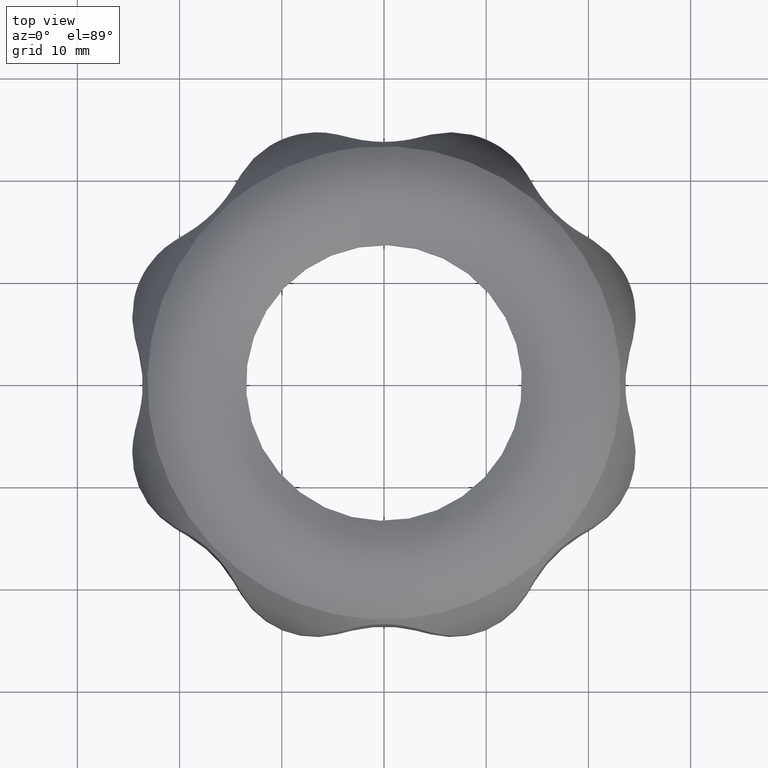
[diagram: clean part render]
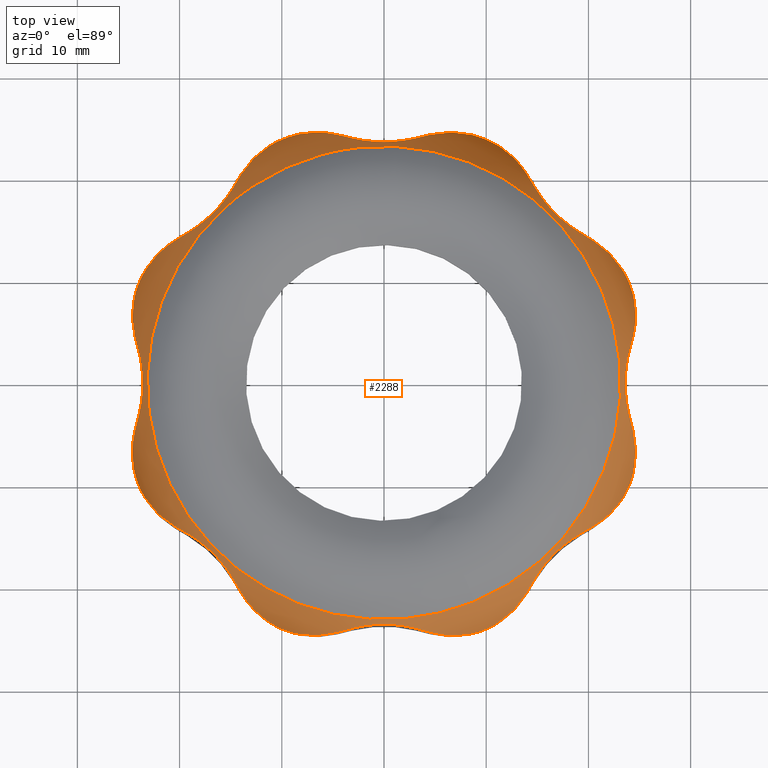
[diagram: same view with one face highlighted and labeled with its STEP entity id]
A machine part, top view. The second image highlights one B-rep face of the part: STEP entity #2288.
In plain terms, the highlighted face is a freeform B-spline surface patch.
Its self-contained STEP definition (entity closure, byte-faithful):
#2288 = ADVANCED_FACE( '', ( #6747, #6748 ), #6749, .T. );
#6747 = FACE_OUTER_BOUND( '', #11383, .T. );
#6748 = FACE_OUTER_BOUND( '', #11384, .T. );
#6749 = ( B_SPLINE_SURFACE( 3, 3, ( ( #11386, #11387, #11388, #11389, #11390, #11391, #11392 ), ( #11393, #11394, #11395, #11396, #11397, #11398, #11399 ), ( #11400, #11401, #11402, #11403, #11404, #11405, #11406 ), ( #11407, #11408, #11409, #11410, #11411, #11412, #11413 ) ), .UNSPECIFIED., .F., .T., .F. )B_SPLINE_SURFACE_WITH_KNOTS( ( 4, 4 ), ( 4, 3, 4 ), ( 0.000000000000000, 6.28318530717959 ), ( 0.108117057146346, 0.327242934554996, 0.546368811963645 ), .UNSPECIFIED. )RATIONAL_B_SPLINE_SURFACE( ( ( 1.00000000000000, 0.333333333333333, 0.333333333333333, 1.00000000000000, 0.333333333333333, 0.333333333333333, 1.00000000000000 ), ( 0.984058557275389, 0.328019519091796, 0.328019519091796, 0.984058557275389, 0.328019519091796, 0.328019519091796, 0.984058557275389 ), ( 0.984058557275389, 0.328019519091796, 0.328019519091796, 0.984058557275389, 0.328019519091796, 0.328019519091796, 0.984058557275389 ), ( 1.00000000000000, 0.333333333333333, 0.333333333333333, 1.00000000000000, 0.333333333333333, 0.333333333333333, 1.00000000000000 ) ) )BOUNDED_SURFACE(  )REPRESENTATION_ITEM( '' )GEOMETRIC_REPRESENTATION_ITEM(  )SURFACE(  ) );
#11383 = EDGE_LOOP( '', ( #31078 ) );
#11384 = EDGE_LOOP( '', ( #31079, #31080, #31081, #31082, #31083, #31084, #31085, #31086, #31087, #31088, #31089, #31090, #31091, #31092, #31093, #31094, #31095, #31096, #31097, #31098, #31099, #31100, #31101, #31102, #31103, #31104, #31105, #31106, #31107, #31108, #31109, #31110 ) );
#11386 = CARTESIAN_POINT( '', ( 8.86366754810526, -21.3987864070020, 14.3618363573818 ) );
#11387 = CARTESIAN_POINT( '', ( 51.6612403621092, -3.67145131079148, 14.3618363573818 ) );
#11388 = CARTESIAN_POINT( '', ( 33.9339052658987, 39.1261215032125, 14.3618363573818 ) );
#11389 = CARTESIAN_POINT( '', ( -8.86366754810526, 21.3987864070020, 14.3618363573818 ) );
#11390 = CARTESIAN_POINT( '', ( -51.6612403621092, 3.67145131079148, 14.3618363573818 ) );
#11391 = CARTESIAN_POINT( '', ( -33.9339052658987, -39.1261215032125, 14.3618363573818 ) );
#11392 = CARTESIAN_POINT( '', ( 8.86366754810526, -21.3987864070020, 14.3618363573818 ) );
#11393 = CARTESIAN_POINT( '', ( 9.44930551627223, -22.8126415323913, 11.8453175872549 ) );
#11394 = CARTESIAN_POINT( '', ( 55.0745885810549, -3.91403049984686, 11.8453175872549 ) );
#11395 = CARTESIAN_POINT( '', ( 36.1759775485104, 41.7112525649358, 11.8453175872549 ) );
#11396 = CARTESIAN_POINT( '', ( -9.44930551627223, 22.8126415323913, 11.8453175872549 ) );
#11397 = CARTESIAN_POINT( '', ( -55.0745885810549, 3.91403049984686, 11.8453175872549 ) );
#11398 = CARTESIAN_POINT( '', ( -36.1759775485104, -41.7112525649358, 11.8453175872549 ) );
#11399 = CARTESIAN_POINT( '', ( 9.44930551627223, -22.8126415323913, 11.8453175872549 ) );
#11400 = CARTESIAN_POINT( '', ( 9.81159952730305, -23.6872966473885, 9.05631304349200 ) );
#11401 = CARTESIAN_POINT( '', ( 57.1861928220800, -4.06409759278237, 9.05631304349200 ) );
#11402 = CARTESIAN_POINT( '', ( 37.5629937674739, 43.3104957019946, 9.05631304349201 ) );
#11403 = CARTESIAN_POINT( '', ( -9.81159952730305, 23.6872966473885, 9.05631304349201 ) );
#11404 = CARTESIAN_POINT( '', ( -57.1861928220800, 4.06409759278237, 9.05631304349201 ) );
#11405 = CARTESIAN_POINT( '', ( -37.5629937674739, -43.3104957019946, 9.05631304349200 ) );
#11406 = CARTESIAN_POINT( '', ( 9.81159952730305, -23.6872966473885, 9.05631304349200 ) );
#11407 = CARTESIAN_POINT( '', ( 9.93322311351877, -23.9809219587349, 6.12820499467240 ) );
#11408 = CARTESIAN_POINT( '', ( 57.8950670309886, -4.11447573169738, 6.12820499467240 ) );
#11409 = CARTESIAN_POINT( '', ( 38.0286208039511, 43.8473681857725, 6.12820499467240 ) );
#11410 = CARTESIAN_POINT( '', ( -9.93322311351877, 23.9809219587349, 6.12820499467241 ) );
#11411 = CARTESIAN_POINT( '', ( -57.8950670309886, 4.11447573169738, 6.12820499467240 ) );
#11412 = CARTESIAN_POINT( '', ( -38.0286208039511, -43.8473681857725, 6.12820499467240 ) );
#11413 = CARTESIAN_POINT( '', ( 9.93322311351877, -23.9809219587349, 6.12820499467240 ) );
#31078 = ORIENTED_EDGE( '', *, *, #37648, .F. );
#31079 = ORIENTED_EDGE( '', *, *, #37646, .F. );
#31080 = ORIENTED_EDGE( '', *, *, #37645, .F. );
#31081 = ORIENTED_EDGE( '', *, *, #37643, .F. );
#31082 = ORIENTED_EDGE( '', *, *, #37641, .F. );
#31083 = ORIENTED_EDGE( '', *, *, #37639, .F. );
#31084 = ORIENTED_EDGE( '', *, *, #37637, .F. );
#31085 = ORIENTED_EDGE( '', *, *, #37635, .F. );
#31086 = ORIENTED_EDGE( '', *, *, #37633, .F. );
#31087 = ORIENTED_EDGE( '', *, *, #37631, .F. );
#31088 = ORIENTED_EDGE( '', *, *, #37629, .F. );
#31089 = ORIENTED_EDGE( '', *, *, #37627, .F. );
#31090 = ORIENTED_EDGE( '', *, *, #37625, .F. );
#31091 = ORIENTED_EDGE( '', *, *, #37623, .F. );
#31092 = ORIENTED_EDGE( '', *, *, #37621, .F. );
#31093 = ORIENTED_EDGE( '', *, *, #37619, .F. );
#31094 = ORIENTED_EDGE( '', *, *, #37617, .F. );
#31095 = ORIENTED_EDGE( '', *, *, #37615, .F. );
#31096 = ORIENTED_EDGE( '', *, *, #37613, .F. );
#31097 = ORIENTED_EDGE( '', *, *, #37611, .F. );
#31098 = ORIENTED_EDGE( '', *, *, #37609, .F. );
#31099 = ORIENTED_EDGE( '', *, *, #37607, .F. );
#31100 = ORIENTED_EDGE( '', *, *, #37605, .F. );
#31101 = ORIENTED_EDGE( '', *, *, #37603, .F. );
#31102 = ORIENTED_EDGE( '', *, *, #37601, .F. );
#31103 = ORIENTED_EDGE( '', *, *, #37599, .F. );
#31104 = ORIENTED_EDGE( '', *, *, #37597, .F. );
#31105 = ORIENTED_EDGE( '', *, *, #37595, .F. );
#31106 = ORIENTED_EDGE( '', *, *, #37593, .F. );
#31107 = ORIENTED_EDGE( '', *, *, #37591, .F. );
#31108 = ORIENTED_EDGE( '', *, *, #37589, .F. );
#31109 = ORIENTED_EDGE( '', *, *, #37587, .F. );
#31110 = ORIENTED_EDGE( '', *, *, #37585, .F. );
#37585 = EDGE_CURVE( '', #48445, #48443, #48447, .T. );
#37587 = EDGE_CURVE( '', #48443, #48448, #48450, .T. );
#37589 = EDGE_CURVE( '', #48448, #48451, #48453, .T. );
#37591 = EDGE_CURVE( '', #48451, #48454, #48456, .T. );
#37593 = EDGE_CURVE( '', #48454, #48457, #48459, .T. );
#37595 = EDGE_CURVE( '', #48457, #48460, #48462, .T. );
#37597 = EDGE_CURVE( '', #48460, #48463, #48465, .T. );
#37599 = EDGE_CURVE( '', #48463, #48466, #48468, .T. );
#37601 = EDGE_CURVE( '', #48466, #48469, #48471, .T. );
#37603 = EDGE_CURVE( '', #48469, #48472, #48474, .T. );
#37605 = EDGE_CURVE( '', #48472, #48475, #48477, .T. );
#37607 = EDGE_CURVE( '', #48475, #48478, #48480, .T. );
#37609 = EDGE_CURVE( '', #48478, #48481, #48483, .T. );
#37611 = EDGE_CURVE( '', #48481, #48484, #48486, .T. );
#37613 = EDGE_CURVE( '', #48484, #48487, #48489, .T. );
#37615 = EDGE_CURVE( '', #48487, #48490, #48492, .T. );
#37617 = EDGE_CURVE( '', #48490, #48493, #48495, .T. );
#37619 = EDGE_CURVE( '', #48493, #48496, #48498, .T. );
#37621 = EDGE_CURVE( '', #48496, #48499, #48501, .T. );
#37623 = EDGE_CURVE( '', #48499, #48502, #48504, .T. );
#37625 = EDGE_CURVE( '', #48502, #48505, #48507, .T. );
#37627 = EDGE_CURVE( '', #48505, #48508, #48510, .T. );
#37629 = EDGE_CURVE( '', #48508, #48511, #48513, .T. );
#37631 = EDGE_CURVE( '', #48511, #48514, #48516, .T. );
#37633 = EDGE_CURVE( '', #48514, #48517, #48519, .T. );
#37635 = EDGE_CURVE( '', #48517, #48520, #48522, .T. );
#37637 = EDGE_CURVE( '', #48520, #48523, #48525, .T. );
#37639 = EDGE_CURVE( '', #48523, #48526, #48528, .T. );
#37641 = EDGE_CURVE( '', #48526, #48529, #48531, .T. );
#37643 = EDGE_CURVE( '', #48529, #48532, #48534, .T. );
#37645 = EDGE_CURVE( '', #48532, #48535, #48537, .T. );
#37646 = EDGE_CURVE( '', #48535, #48445, #48538, .T. );
#37648 = EDGE_CURVE( '', #48541, #48541, #48542, .T. );
#48443 = VERTEX_POINT( '', #75630 );
#48445 = VERTEX_POINT( '', #75633 );
#48447 = B_SPLINE_CURVE_WITH_KNOTS( '', 3, ( #75636, #75637, #75638, #75639, #75640, #75641, #75642, #75643, #75644, #75645, #75646, #75647, #75648, #75649, #75650, #75651, #75652, #75653, #75654, #75655, #75656, #75657, #75658, #75659, #75660, #75661, #75662, #75663, #75664, #75665, #75666, #75667 ), .UNSPECIFIED., .F., .F., ( 4, 2, 2, 2, 2, 2, 2, 2, 2, 2, 2, 2, 2, 2, 2, 4 ), ( 3.00726133243734E-007, 0.00184662271264011, 0.00369294469914697, 0.00461610569240040, 0.00553926668565384, 0.00646242767890727, 0.00692400817553399, 0.00738558867216070, 0.00784716916878742, 0.00830874966541414, 0.00877033016204085, 0.00923191065866757, 0.0101550716519210, 0.0110782326451744, 0.0129245546316813, 0.0147708766181882 ), .UNSPECIFIED. );
#48448 = VERTEX_POINT( '', #75668 );
#48450 = B_SPLINE_CURVE_WITH_KNOTS( '', 3, ( #75671, #75672, #75673, #75674 ), .UNSPECIFIED., .F., .F., ( 4, 4 ), ( 3.01908104189329E-007, 0.00208629614427820 ), .UNSPECIFIED. );
#48451 = VERTEX_POINT( '', #75675 );
#48453 = B_SPLINE_CURVE_WITH_KNOTS( '', 3, ( #75678, #75679, #75680, #75681, #75682, #75683, #75684, #75685, #75686, #75687, #75688, #75689, #75690, #75691, #75692, #75693, #75694, #75695 ), .UNSPECIFIED., .F., .F., ( 4, 2, 2, 2, 2, 2, 2, 2, 4 ), ( 2.54486947955710E-007, 0.000851564008463914, 0.00170287352997987, 0.00255418305149583, 0.00340549257301179, 0.00425680209452775, 0.00510811161604371, 0.00595942113755967, 0.00681073065907562 ), .UNSPECIFIED. );
#48454 = VERTEX_POINT( '', #75696 );
#48456 = B_SPLINE_CURVE_WITH_KNOTS( '', 3, ( #75699, #75700, #75701, #75702 ), .UNSPECIFIED., .F., .F., ( 4, 4 ), ( 3.16318687640545E-007, 0.00208630547498395 ), .UNSPECIFIED. );
#48457 = VERTEX_POINT( '', #75703 );
#48459 = B_SPLINE_CURVE_WITH_KNOTS( '', 3, ( #75706, #75707, #75708, #75709, #75710, #75711, #75712, #75713, #75714, #75715, #75716, #75717, #75718, #75719, #75720, #75721, #75722, #75723, #75724, #75725, #75726, #75727, #75728, #75729, #75730, #75731, #75732, #75733, #75734, #75735, #75736, #75737 ), .UNSPECIFIED., .F., .F., ( 4, 2, 2, 2, 2, 2, 2, 2, 2, 2, 2, 2, 2, 2, 2, 4 ), ( 3.71176971205966E-007, 0.00184669291424960, 0.00369301465152799, 0.00461617552016718, 0.00553933638880637, 0.00646249725744556, 0.00692407769176515, 0.00738565812608475, 0.00784723856040434, 0.00830881899472393, 0.00877039942904353, 0.00923197986336312, 0.0101551407320023, 0.0110783016006415, 0.0129246233379199, 0.0147709450751982 ), .UNSPECIFIED. );
#48460 = VERTEX_POINT( '', #75738 );
#48462 = B_SPLINE_CURVE_WITH_KNOTS( '', 3, ( #75741, #75742, #75743, #75744 ), .UNSPECIFIED., .F., .F., ( 4, 4 ), ( 3.72632336376977E-007, 0.00208636271298664 ), .UNSPECIFIED. );
#48463 = VERTEX_POINT( '', #75745 );
#48465 = B_SPLINE_CURVE_WITH_KNOTS( '', 3, ( #75748, #75749, #75750, #75751, #75752, #75753, #75754, #75755, #75756, #75757, #75758, #75759, #75760, #75761, #75762, #75763, #75764, #75765 ), .UNSPECIFIED., .F., .F., ( 4, 2, 2, 2, 2, 2, 2, 2, 4 ), ( 3.14105581883907E-007, 0.000851624285171534, 0.00170293446476118, 0.00255424464435084, 0.00340555482394049, 0.00425686500353014, 0.00510817518311979, 0.00595948536270944, 0.00681079554229909 ), .UNSPECIFIED. );
#48466 = VERTEX_POINT( '', #75766 );
#48468 = B_SPLINE_CURVE_WITH_KNOTS( '', 3, ( #75769, #75770, #75771, #75772 ), .UNSPECIFIED., .F., .F., ( 4, 4 ), ( 2.56284012605812E-007, 0.00208624151364986 ), .UNSPECIFIED. );
#48469 = VERTEX_POINT( '', #75773 );
#48471 = B_SPLINE_CURVE_WITH_KNOTS( '', 3, ( #75776, #75777, #75778, #75779, #75780, #75781, #75782, #75783, #75784, #75785, #75786, #75787, #75788, #75789, #75790, #75791, #75792, #75793, #75794, #75795, #75796, #75797, #75798, #75799, #75800, #75801, #75802, #75803, #75804, #75805, #75806, #75807 ), .UNSPECIFIED., .F., .F., ( 4, 2, 2, 2, 2, 2, 2, 2, 2, 2, 2, 2, 2, 2, 2, 4 ), ( 3.00726128225049E-007, 0.00184662271263575, 0.00369294469914327, 0.00461610569239703, 0.00553926668565079, 0.00646242767890455, 0.00692400817553143, 0.00738558867215831, 0.00784716916878518, 0.00830874966541206, 0.00877033016203894, 0.00923191065866582, 0.0101550716519196, 0.0110782326451733, 0.0129245546316809, 0.0147708766181884 ), .UNSPECIFIED. );
#48472 = VERTEX_POINT( '', #75808 );
#48474 = B_SPLINE_CURVE_WITH_KNOTS( '', 3, ( #75811, #75812, #75813, #75814 ), .UNSPECIFIED., .F., .F., ( 4, 4 ), ( 3.01908104187495E-007, 0.00208629614427849 ), .UNSPECIFIED. );
#48475 = VERTEX_POINT( '', #75815 );
#48477 = B_SPLINE_CURVE_WITH_KNOTS( '', 3, ( #75818, #75819, #75820, #75821, #75822, #75823, #75824, #75825, #75826, #75827, #75828, #75829, #75830, #75831, #75832, #75833, #75834, #75835 ), .UNSPECIFIED., .F., .F., ( 4, 2, 2, 2, 2, 2, 2, 2, 4 ), ( 2.54486948203168E-007, 0.000851564008464146, 0.00170287352998009, 0.00255418305149603, 0.00340549257301197, 0.00425680209452792, 0.00510811161604386, 0.00595942113755980, 0.00681073065907575 ), .UNSPECIFIED. );
#48478 = VERTEX_POINT( '', #75836 );
#48480 = B_SPLINE_CURVE_WITH_KNOTS( '', 3, ( #75839, #75840, #75841, #75842 ), .UNSPECIFIED., .F., .F., ( 4, 4 ), ( 3.16318687597150E-007, 0.00208630547498352 ), .UNSPECIFIED. );
#48481 = VERTEX_POINT( '', #75843 );
#48483 = B_SPLINE_CURVE_WITH_KNOTS( '', 3, ( #75846, #75847, #75848, #75849, #75850, #75851, #75852, #75853, #75854, #75855, #75856, #75857, #75858, #75859, #75860, #75861, #75862, #75863, #75864, #75865, #75866, #75867, #75868, #75869, #75870, #75871, #75872, #75873, #75874, #75875, #75876, #75877 ), .UNSPECIFIED., .F., .F., ( 4, 2, 2, 2, 2, 2, 2, 2, 2, 2, 2, 2, 2, 2, 2, 4 ), ( 3.71176971171015E-007, 0.00184669291425181, 0.00369301465153245, 0.00461617552017277, 0.00553933638881309, 0.00646249725745341, 0.00692407769177357, 0.00738565812609373, 0.00784723856041390, 0.00830881899473406, 0.00877039942905422, 0.00923197986337438, 0.0101551407320147, 0.0110783016006550, 0.0129246233379357, 0.0147709450752163 ), .UNSPECIFIED. );
#48484 = VERTEX_POINT( '', #75878 );
#48486 = B_SPLINE_CURVE_WITH_KNOTS( '', 3, ( #75881, #75882, #75883, #75884 ), .UNSPECIFIED., .F., .F., ( 4, 4 ), ( 3.72632355295676E-007, 0.00208636271297123 ), .UNSPECIFIED. );
#48487 = VERTEX_POINT( '', #75885 );
#48489 = B_SPLINE_CURVE_WITH_KNOTS( '', 3, ( #75888, #75889, #75890, #75891, #75892, #75893, #75894, #75895, #75896, #75897, #75898, #75899, #75900, #75901, #75902, #75903, #75904, #75905 ), .UNSPECIFIED., .F., .F., ( 4, 2, 2, 2, 2, 2, 2, 2, 4 ), ( 3.14105566133752E-007, 0.000851624285157694, 0.00170293446474925, 0.00255424464434081, 0.00340555482393237, 0.00425686500352393, 0.00510817518311549, 0.00595948536270705, 0.00681079554229861 ), .UNSPECIFIED. );
#48490 = VERTEX_POINT( '', #75906 );
#48492 = B_SPLINE_CURVE_WITH_KNOTS( '', 3, ( #75909, #75910, #75911, #75912 ), .UNSPECIFIED., .F., .F., ( 4, 4 ), ( 2.56284012559903E-007, 0.00208624151365016 ), .UNSPECIFIED. );
#48493 = VERTEX_POINT( '', #75913 );
#48495 = B_SPLINE_CURVE_WITH_KNOTS( '', 3, ( #75916, #75917, #75918, #75919, #75920, #75921, #75922, #75923, #75924, #75925, #75926, #75927, #75928, #75929, #75930, #75931, #75932, #75933, #75934, #75935, #75936, #75937, #75938, #75939, #75940, #75941, #75942, #75943, #75944, #75945, #75946, #75947 ), .UNSPECIFIED., .F., .F., ( 4, 2, 2, 2, 2, 2, 2, 2, 2, 2, 2, 2, 2, 2, 2, 4 ), ( 3.00726128264484E-007, 0.00184662271263836, 0.00369294469914845, 0.00461610569240350, 0.00553926668565855, 0.00646242767891359, 0.00692400817554112, 0.00738558867216864, 0.00784716916879616, 0.00830874966542369, 0.00877033016205121, 0.00923191065867873, 0.0101550716519338, 0.0110782326451888, 0.0129245546316989, 0.0147708766182090 ), .UNSPECIFIED. );
#48496 = VERTEX_POINT( '', #75948 );
#48498 = B_SPLINE_CURVE_WITH_KNOTS( '', 3, ( #75951, #75952, #75953, #75954 ), .UNSPECIFIED., .F., .F., ( 4, 4 ), ( 3.01908125103824E-007, 0.00208629614427978 ), .UNSPECIFIED. );
#48499 = VERTEX_POINT( '', #75955 );
#48501 = B_SPLINE_CURVE_WITH_KNOTS( '', 3, ( #75958, #75959, #75960, #75961, #75962, #75963, #75964, #75965, #75966, #75967, #75968, #75969, #75970, #75971, #75972, #75973, #75974, #75975 ), .UNSPECIFIED., .F., .F., ( 4, 2, 2, 2, 2, 2, 2, 2, 4 ), ( 2.54486948081974E-007, 0.000851564008463954, 0.00170287352997983, 0.00255418305149570, 0.00340549257301157, 0.00425680209452744, 0.00510811161604331, 0.00595942113755918, 0.00681073065907505 ), .UNSPECIFIED. );
#48502 = VERTEX_POINT( '', #75976 );
#48504 = B_SPLINE_CURVE_WITH_KNOTS( '', 3, ( #75979, #75980, #75981, #75982 ), .UNSPECIFIED., .F., .F., ( 4, 4 ), ( 3.16318687722787E-007, 0.00208630547498366 ), .UNSPECIFIED. );
#48505 = VERTEX_POINT( '', #75983 );
#48507 = B_SPLINE_CURVE_WITH_KNOTS( '', 3, ( #75986, #75987, #75988, #75989, #75990, #75991, #75992, #75993, #75994, #75995, #75996, #75997, #75998, #75999, #76000, #76001, #76002, #76003, #76004, #76005, #76006, #76007, #76008, #76009, #76010, #76011, #76012, #76013, #76014, #76015, #76016, #76017 ), .UNSPECIFIED., .F., .F., ( 4, 2, 2, 2, 2, 2, 2, 2, 2, 2, 2, 2, 2, 2, 2, 4 ), ( 3.71176971246008E-007, 0.00184669291425170, 0.00369301465153216, 0.00461617552017238, 0.00553933638881261, 0.00646249725745284, 0.00692407769177296, 0.00738565812609307, 0.00784723856041319, 0.00830881899473330, 0.00877039942905342, 0.00923197986337353, 0.0101551407320138, 0.0110783016006540, 0.0129246233379345, 0.0147709450752150 ), .UNSPECIFIED. );
#48508 = VERTEX_POINT( '', #76018 );
#48510 = B_SPLINE_CURVE_WITH_KNOTS( '', 3, ( #76021, #76022, #76023, #76024 ), .UNSPECIFIED., .F., .F., ( 4, 4 ), ( 3.72632353421950E-007, 0.00208636271298631 ), .UNSPECIFIED. );
#48511 = VERTEX_POINT( '', #76025 );
#48513 = B_SPLINE_CURVE_WITH_KNOTS( '', 3, ( #76028, #76029, #76030, #76031, #76032, #76033, #76034, #76035, #76036, #76037, #76038, #76039, #76040, #76041, #76042, #76043, #76044, #76045 ), .UNSPECIFIED., .F., .F., ( 4, 2, 2, 2, 2, 2, 2, 2, 4 ), ( 3.14105581789485E-007, 0.000851624285171441, 0.00170293446476109, 0.00255424464435074, 0.00340555482394040, 0.00425686500353005, 0.00510817518311970, 0.00595948536270935, 0.00681079554229900 ), .UNSPECIFIED. );
#48514 = VERTEX_POINT( '', #76046 );
#48516 = B_SPLINE_CURVE_WITH_KNOTS( '', 3, ( #76049, #76050, #76051, #76052 ), .UNSPECIFIED., .F., .F., ( 4, 4 ), ( 2.56284012576231E-007, 0.00208624151365012 ), .UNSPECIFIED. );
#48517 = VERTEX_POINT( '', #76053 );
#48519 = B_SPLINE_CURVE_WITH_KNOTS( '', 3, ( #76056, #76057, #76058, #76059, #76060, #76061, #76062, #76063, #76064, #76065, #76066, #76067, #76068, #76069, #76070, #76071, #76072, #76073, #76074, #76075, #76076, #76077, #76078, #76079, #76080, #76081, #76082, #76083, #76084, #76085, #76086, #76087 ), .UNSPECIFIED., .F., .F., ( 4, 2, 2, 2, 2, 2, 2, 2, 2, 2, 2, 2, 2, 2, 2, 4 ), ( 3.00726128236855E-007, 0.00184662271263882, 0.00369294469914941, 0.00461610569240471, 0.00553926668566000, 0.00646242767891529, 0.00692400817554294, 0.00738558867217059, 0.00784716916879824, 0.00830874966542588, 0.00877033016205353, 0.00923191065868118, 0.0101550716519365, 0.0110782326451918, 0.0129245546317023, 0.0147708766182129 ), .UNSPECIFIED. );
#48520 = VERTEX_POINT( '', #76088 );
#48522 = B_SPLINE_CURVE_WITH_KNOTS( '', 3, ( #76091, #76092, #76093, #76094 ), .UNSPECIFIED., .F., .F., ( 4, 4 ), ( 3.01908126768529E-007, 0.00208629614427789 ), .UNSPECIFIED. );
#48523 = VERTEX_POINT( '', #76095 );
#48525 = B_SPLINE_CURVE_WITH_KNOTS( '', 3, ( #76098, #76099, #76100, #76101, #76102, #76103, #76104, #76105, #76106, #76107, #76108, #76109, #76110, #76111, #76112, #76113, #76114, #76115 ), .UNSPECIFIED., .F., .F., ( 4, 2, 2, 2, 2, 2, 2, 2, 4 ), ( 2.54486947704893E-007, 0.000851564008463714, 0.00170287352997972, 0.00255418305149573, 0.00340549257301174, 0.00425680209452775, 0.00510811161604376, 0.00595942113755977, 0.00681073065907578 ), .UNSPECIFIED. );
#48526 = VERTEX_POINT( '', #76116 );
#48528 = B_SPLINE_CURVE_WITH_KNOTS( '', 3, ( #76119, #76120, #76121, #76122 ), .UNSPECIFIED., .F., .F., ( 4, 4 ), ( 3.16318687607540E-007, 0.00208630547498373 ), .UNSPECIFIED. );
#48529 = VERTEX_POINT( '', #76123 );
#48531 = B_SPLINE_CURVE_WITH_KNOTS( '', 3, ( #76126, #76127, #76128, #76129, #76130, #76131, #76132, #76133, #76134, #76135, #76136, #76137, #76138, #76139, #76140, #76141, #76142, #76143, #76144, #76145, #76146, #76147, #76148, #76149, #76150, #76151, #76152, #76153, #76154, #76155, #76156, #76157 ), .UNSPECIFIED., .F., .F., ( 4, 2, 2, 2, 2, 2, 2, 2, 2, 2, 2, 2, 2, 2, 2, 4 ), ( 3.71176971144488E-007, 0.00184669291424948, 0.00369301465152781, 0.00461617552016697, 0.00553933638880614, 0.00646249725744530, 0.00692407769176489, 0.00738565812608447, 0.00784723856040405, 0.00830881899472364, 0.00877039942904322, 0.00923197986336280, 0.0101551407320020, 0.0110783016006411, 0.0129246233379195, 0.0147709450751978 ), .UNSPECIFIED. );
#48532 = VERTEX_POINT( '', #76158 );
#48534 = B_SPLINE_CURVE_WITH_KNOTS( '', 3, ( #76161, #76162, #76163, #76164 ), .UNSPECIFIED., .F., .F., ( 4, 4 ), ( 3.72632336389665E-007, 0.00208636271297078 ), .UNSPECIFIED. );
#48535 = VERTEX_POINT( '', #76165 );
#48537 = B_SPLINE_CURVE_WITH_KNOTS( '', 3, ( #76168, #76169, #76170, #76171, #76172, #76173, #76174, #76175, #76176, #76177, #76178, #76179, #76180, #76181, #76182, #76183, #76184, #76185 ), .UNSPECIFIED., .F., .F., ( 4, 2, 2, 2, 2, 2, 2, 2, 4 ), ( 3.14105565979364E-007, 0.000851624285157519, 0.00170293446474906, 0.00255424464434060, 0.00340555482393214, 0.00425686500352367, 0.00510817518311521, 0.00595948536270675, 0.00681079554229829 ), .UNSPECIFIED. );
#48538 = B_SPLINE_CURVE_WITH_KNOTS( '', 3, ( #76186, #76187, #76188, #76189 ), .UNSPECIFIED., .F., .F., ( 4, 4 ), ( 2.56284012583164E-007, 0.00208624151365566 ), .UNSPECIFIED. );
#48541 = VERTEX_POINT( '', #76192 );
#48542 = CIRCLE( '', #76193, 23.1618795026619 );
#75630 = CARTESIAN_POINT( '', ( 20.4734949669686, -13.9793231238272, 11.0172697187238 ) );
#75633 = CARTESIAN_POINT( '', ( 24.3618207041693, -4.59207058274056, 11.0172724455441 ) );
#75636 = CARTESIAN_POINT( '', ( 24.3618207041698, -4.59207058274043, 11.0172724455440 ) );
#75637 = CARTESIAN_POINT( '', ( 24.4633183712004, -4.99305397791593, 10.5550865058585 ) );
#75638 = CARTESIAN_POINT( '', ( 24.5348716391772, -5.39795095029597, 10.0947528049851 ) );
#75639 = CARTESIAN_POINT( '', ( 24.6191918745173, -6.21720850214283, 9.17934841280376 ) );
#75640 = CARTESIAN_POINT( '', ( 24.6321670856578, -6.63110947653761, 8.72386980435630 ) );
#75641 = CARTESIAN_POINT( '', ( 24.6038865382062, -7.26735300931948, 8.05196672951540 ) );
#75642 = CARTESIAN_POINT( '', ( 24.5864650756971, -7.48205906915724, 7.82993708652823 ) );
#75643 = CARTESIAN_POINT( '', ( 24.5330817457076, -7.92189025961248, 7.39432982773094 ) );
#75644 = CARTESIAN_POINT( '', ( 24.4974282373604, -8.14528552208268, 7.18188268382581 ) );
#75645 = CARTESIAN_POINT( '', ( 24.4025234610776, -8.61024005325801, 6.78186396659788 ) );
#75646 = CARTESIAN_POINT( '', ( 24.3435264668733, -8.85150489455924, 6.59268178099820 ) );
#75647 = CARTESIAN_POINT( '', ( 24.2272386626196, -9.24074309825057, 6.36836799208149 ) );
#75648 = CARTESIAN_POINT( '', ( 24.1829822538892, -9.37739938521423, 6.30317003180104 ) );
#75649 = CARTESIAN_POINT( '', ( 24.0838806545056, -9.65702851625350, 6.21291362903878 ) );
#75650 = CARTESIAN_POINT( '', ( 24.0278111878073, -9.80311059535269, 6.18787574646997 ) );
#75651 = CARTESIAN_POINT( '', ( 23.9085919700886, -10.0893230051763, 6.19158172408458 ) );
#75652 = CARTESIAN_POINT( '', ( 23.8453695041803, -10.2298477267367, 6.21980009755920 ) );
#75653 = CARTESIAN_POINT( '', ( 23.7168522731290, -10.4969347184557, 6.31591166452821 ) );
#75654 = CARTESIAN_POINT( '', ( 23.6528335620665, -10.6211995384275, 6.38176970846644 ) );
#75655 = CARTESIAN_POINT( '', ( 23.5238942832930, -10.8582192700376, 6.53439249679174 ) );
#75656 = CARTESIAN_POINT( '', ( 23.4589529644394, -10.9708627148321, 6.62140244720767 ) );
#75657 = CARTESIAN_POINT( '', ( 23.3301669999727, -11.1837608996991, 6.80406031987836 ) );
#75658 = CARTESIAN_POINT( '', ( 23.2658496115475, -11.2848636253817, 6.90037206320967 ) );
#75659 = CARTESIAN_POINT( '', ( 23.0714941295743, -11.5773295612350, 7.19839747724387 ) );
#75660 = CARTESIAN_POINT( '', ( 22.9399751926994, -11.7580920033448, 7.40892796493173 ) );
#75661 = CARTESIAN_POINT( '', ( 22.6691775504090, -12.1026318113714, 7.84060379922074 ) );
#75662 = CARTESIAN_POINT( '', ( 22.5296845111294, -12.2664353535318, 8.06252615230212 ) );
#75663 = CARTESIAN_POINT( '', ( 22.1003013515215, -12.7346976451428, 8.73328900464517 ) );
#75664 = CARTESIAN_POINT( '', ( 21.7991096459552, -13.0170107986234, 9.18745801008374 ) );
#75665 = CARTESIAN_POINT( '', ( 21.1622933316406, -13.5342584326383, 10.0994297838898 ) );
#75666 = CARTESIAN_POINT( '', ( 20.8268453704043, -13.7687212128187, 10.5576298400480 ) );
#75667 = CARTESIAN_POINT( '', ( 20.4734949669688, -13.9793231238273, 11.0172697187238 ) );
#75668 = CARTESIAN_POINT( '', ( 19.1658789673317, -14.7586810238365, 12.4434932687182 ) );
#75671 = CARTESIAN_POINT( '', ( 20.4734949669687, -13.9793231238270, 11.0172697187240 ) );
#75672 = CARTESIAN_POINT( '', ( 20.0736295269482, -14.2176486641288, 11.5374165773399 ) );
#75673 = CARTESIAN_POINT( '', ( 19.6369188023072, -14.4779345227925, 12.0117822918353 ) );
#75674 = CARTESIAN_POINT( '', ( 19.1658789673318, -14.7586810238364, 12.4434932687183 ) );
#75675 = CARTESIAN_POINT( '', ( 14.7586794139040, -19.1658812288871, 12.4434915377695 ) );
#75678 = CARTESIAN_POINT( '', ( 19.1658789673318, -14.7586810238365, 12.4434932687182 ) );
#75679 = CARTESIAN_POINT( '', ( 18.9722828100756, -14.8740671116569, 12.6209253667360 ) );
#75680 = CARTESIAN_POINT( '', ( 18.7735452690445, -14.9994642713150, 12.7814514157972 ) );
#75681 = CARTESIAN_POINT( '', ( 18.3661765188265, -15.2740334133685, 13.0656479365200 ) );
#75682 = CARTESIAN_POINT( '', ( 18.1566222089437, -15.4238885815522, 13.1898089262977 ) );
#75683 = CARTESIAN_POINT( '', ( 17.7312843297091, -15.7497761276109, 13.3936778323141 ) );
#75684 = CARTESIAN_POINT( '', ( 17.5201235297248, -15.9222264653352, 13.4713370652254 ) );
#75685 = CARTESIAN_POINT( '', ( 17.1018268169578, -16.2877722391964, 13.5766550299215 ) );
#75686 = CARTESIAN_POINT( '', ( 16.8930115374060, -16.4825506715071, 13.6043162337803 ) );
#75687 = CARTESIAN_POINT( '', ( 16.4877880916708, -16.8875323734774, 13.6047945139040 ) );
#75688 = CARTESIAN_POINT( '', ( 16.2949785392183, -17.0939044606934, 13.5780738318264 ) );
#75689 = CARTESIAN_POINT( '', ( 15.9275836327803, -17.5136801283599, 13.4735160752957 ) );
#75690 = CARTESIAN_POINT( '', ( 15.7514957670764, -17.7291769925043, 13.3944549269368 ) );
#75691 = CARTESIAN_POINT( '', ( 15.4269693783633, -18.1524657928985, 13.1920310665629 ) );
#75692 = CARTESIAN_POINT( '', ( 15.2777243358695, -18.3608725213903, 13.0690513352808 ) );
#75693 = CARTESIAN_POINT( '', ( 15.0012533498523, -18.7707215364885, 12.7837129402831 ) );
#75694 = CARTESIAN_POINT( '', ( 14.8741875605834, -18.9720802146633, 12.6211115325964 ) );
#75695 = CARTESIAN_POINT( '', ( 14.7586794139039, -19.1658812288871, 12.4434915377696 ) );
#75696 = CARTESIAN_POINT( '', ( 13.9793237672530, -20.4734938874210, 11.0172711230045 ) );
#75699 = CARTESIAN_POINT( '', ( 14.7586794139039, -19.1658812288872, 12.4434915377696 ) );
#75700 = CARTESIAN_POINT( '', ( 14.4779337556585, -19.6369198081642, 12.0117813614863 ) );
#75701 = CARTESIAN_POINT( '', ( 14.2176486536128, -20.0736294101609, 11.5374166793323 ) );
#75702 = CARTESIAN_POINT( '', ( 13.9793237672528, -20.4734938874211, 11.0172711230047 ) );
#75703 = CARTESIAN_POINT( '', ( 4.59207174617270, -24.3618209986592, 11.0172711045361 ) );
#75706 = CARTESIAN_POINT( '', ( 13.9793237672530, -20.4734938874209, 11.0172711230045 ) );
#75707 = CARTESIAN_POINT( '', ( 13.7675554048967, -20.8288014963206, 10.5550853465512 ) );
#75708 = CARTESIAN_POINT( '', ( 13.5318458381841, -21.1657025772152, 10.0947517693623 ) );
#75709 = CARTESIAN_POINT( '', ( 13.0121667045652, -21.8046283940449, 9.17934755082700 ) );
#75710 = CARTESIAN_POINT( '', ( 12.7286693794188, -22.1064753903464, 8.72386899202759 ) );
#75711 = CARTESIAN_POINT( '', ( 12.2587798453100, -22.5363701095327, 8.05196593813326 ) );
#75712 = CARTESIAN_POINT( '', ( 12.0946408746189, -22.6758713832344, 7.82993629309860 ) );
#75713 = CARTESIAN_POINT( '', ( 11.7458854584648, -22.9491312978126, 7.39432901525946 ) );
#75714 = CARTESIAN_POINT( '', ( 11.5627102427983, -23.0818847899482, 7.18188183761584 ) );
#75715 = CARTESIAN_POINT( '', ( 11.1668297891883, -23.3435495076094, 6.78186313848094 ) );
#75716 = CARTESIAN_POINT( '', ( 10.9545125070541, -23.4724323640025, 6.59268096519383 ) );
#75717 = CARTESIAN_POINT( '', ( 10.5970514580279, -23.6654374707350, 6.36836734432752 ) );
#75718 = CARTESIAN_POINT( '', ( 10.4691267937223, -23.7307740612597, 6.30316946643625 ) );
#75719 = CARTESIAN_POINT( '', ( 10.2013235975206, -23.8584263079405, 6.21291330710138 ) );
#75720 = CARTESIAN_POINT( '', ( 10.0583808069338, -23.9220748321336, 6.18787559053193 ) );
#75721 = CARTESIAN_POINT( '', ( 9.77169729602828, -24.0401568117056, 6.19158191806134 ) );
#75722 = CARTESIAN_POINT( '', ( 9.62762626154831, -24.0948177349596, 6.21980047189588 ) );
#75723 = CARTESIAN_POINT( '', ( 9.34789187032991, -24.1928012806615, 6.31591231955663 ) );
#75724 = CARTESIAN_POINT( '', ( 9.21475532673913, -24.2354016804860, 6.38177047286510 ) );
#75725 = CARTESIAN_POINT( '', ( 8.95598326133077, -24.3118260421375, 6.53439343700182 ) );
#75726 = CARTESIAN_POINT( '', ( 8.83041188486569, -24.3455565119195, 6.62140345403927 ) );
#75727 = CARTESIAN_POINT( '', ( 8.58880472047870, -24.4050327860486, 6.80406144104773 ) );
#75728 = CARTESIAN_POINT( '', ( 8.47183503890827, -24.4310439262607, 6.90037323126058 ) );
#75729 = CARTESIAN_POINT( '', ( 8.12760031513731, -24.5004184330634, 7.19839876836628 ) );
#75730 = CARTESIAN_POINT( '', ( 7.90678402725333, -24.5352388133545, 7.40892931523265 ) );
#75731 = CARTESIAN_POINT( '', ( 7.47167472544362, -24.5873823271511, 7.84060524936849 ) );
#75732 = CARTESIAN_POINT( '', ( 7.25721163999696, -24.6045724137857, 8.06252764730008 ) );
#75733 = CARTESIAN_POINT( '', ( 6.62248040158401, -24.6320640050797, 8.73329062405162 ) );
#75734 = CARTESIAN_POINT( '', ( 6.20988016227913, -24.6187147774706, 9.18745965086858 ) );
#75735 = CARTESIAN_POINT( '', ( 5.39383380205885, -24.5341668206073, 10.0994313704440 ) );
#75736 = CARTESIAN_POINT( '', ( 4.99084613247298, -24.4627594573211, 10.5576313501998 ) );
#75737 = CARTESIAN_POINT( '', ( 4.59207174617258, -24.3618209986597, 11.0172711045360 ) );
#75738 = CARTESIAN_POINT( '', ( 3.11636159782054, -23.9882867072832, 12.4434920929595 ) );
#75741 = CARTESIAN_POINT( '', ( 4.59207174617277, -24.3618209986593, 11.0172711045362 ) );
#75742 = CARTESIAN_POINT( '', ( 4.14080351778482, -24.2475952083850, 11.5374168931369 ) );
#75743 = CARTESIAN_POINT( '', ( 3.64795359899131, -24.1228441891033, 12.0117817650703 ) );
#75744 = CARTESIAN_POINT( '', ( 3.11636159782056, -23.9882867072833, 12.4434920929595 ) );
#75745 = CARTESIAN_POINT( '', ( -3.11636421204379, -23.9882871472931, 12.4434904399896 ) );
#75748 = CARTESIAN_POINT( '', ( 3.11636159782056, -23.9882867072831, 12.4434920929595 ) );
#75749 = CARTESIAN_POINT( '', ( 2.89787838802210, -23.9329838613685, 12.6209241422232 ) );
#75750 = CARTESIAN_POINT( '', ( 2.66868062996700, -23.8811243522441, 12.7814503099085 ) );
#75751 = CARTESIAN_POINT( '', ( 2.18647746540896, -23.7872207170435, 13.0656472659019 ) );
#75752 = CARTESIAN_POINT( '', ( 1.93233550317543, -23.7450068513934, 13.1898088442443 ) );
#75753 = CARTESIAN_POINT( '', ( 1.40113952406868, -23.6746848766207, 13.3936776705663 ) );
#75754 = CARTESIAN_POINT( '', ( 1.12988555232369, -23.6473124076717, 13.4713370177355 ) );
#75755 = CARTESIAN_POINT( '', ( 0.575624775064551, -23.6100117699873, 13.5766552416272 ) );
#75756 = CARTESIAN_POINT( '', ( 0.290239822875148, -23.6000861764664, 13.6043165672286 ) );
#75757 = CARTESIAN_POINT( '', ( -0.282661386358081, -23.5999152238090, 13.6047948874344 ) );
#75758 = CARTESIAN_POINT( '', ( -0.564925519637929, -23.6095053657281, 13.5780742582539 ) );
#75759 = CARTESIAN_POINT( '', ( -1.12153980138629, -23.6465441928682, 13.4735164042391 ) );
#75760 = CARTESIAN_POINT( '', ( -1.39843247944510, -23.6744106232238, 13.3944550851354 ) );
#75761 = CARTESIAN_POINT( '', ( -1.92721773637056, -23.7442462287811, 13.1920311239309 ) );
#75762 = CARTESIAN_POINT( '', ( -2.18011593233219, -23.7860799004377, 13.0690512692920 ) );
#75763 = CARTESIAN_POINT( '', ( -2.66541809406381, -23.8803925772059, 12.7837123501026 ) );
#75764 = CARTESIAN_POINT( '', ( -2.89764938069360, -23.9329256400730, 12.6211107499712 ) );
#75765 = CARTESIAN_POINT( '', ( -3.11636421204386, -23.9882871472930, 12.4434904399897 ) );
#75766 = CARTESIAN_POINT( '', ( -4.59207058273708, -24.3618207041683, 11.0172724455480 ) );
#75769 = CARTESIAN_POINT( '', ( -3.11636421204398, -23.9882871472930, 12.4434904399898 ) );
#75770 = CARTESIAN_POINT( '', ( -3.64795475047807, -24.1228443387275, 12.0117809137678 ) );
#75771 = CARTESIAN_POINT( '', ( -4.14080340628375, -24.2475951123641, 11.5374170363413 ) );
#75772 = CARTESIAN_POINT( '', ( -4.59207058273726, -24.3618207041683, 11.0172724455482 ) );
#75773 = CARTESIAN_POINT( '', ( -13.9793231238272, -20.4734949669685, 11.0172697187238 ) );
#75776 = CARTESIAN_POINT( '', ( -4.59207058273684, -24.3618207041690, 11.0172724455479 ) );
#75777 = CARTESIAN_POINT( '', ( -4.99305397791245, -24.4633183711998, 10.5550865058622 ) );
#75778 = CARTESIAN_POINT( '', ( -5.39795095029260, -24.5348716391768, 10.0947528049886 ) );
#75779 = CARTESIAN_POINT( '', ( -6.21720850213968, -24.6191918745172, 9.17934841280690 ) );
#75780 = CARTESIAN_POINT( '', ( -6.63110947653457, -24.6321670856579, 8.72386980435925 ) );
#75781 = CARTESIAN_POINT( '', ( -7.26735300931656, -24.6038865382065, 8.05196672951804 ) );
#75782 = CARTESIAN_POINT( '', ( -7.48205906915436, -24.5864650756974, 7.82993708653077 ) );
#75783 = CARTESIAN_POINT( '', ( -7.92189025960963, -24.5330817457081, 7.39432982773322 ) );
#75784 = CARTESIAN_POINT( '', ( -8.14528552207990, -24.4974282373610, 7.18188268382790 ) );
#75785 = CARTESIAN_POINT( '', ( -8.61024005325521, -24.4025234610783, 6.78186396659960 ) );
#75786 = CARTESIAN_POINT( '', ( -8.85150489455649, -24.3435264668742, 6.59268178099962 ) );
#75787 = CARTESIAN_POINT( '', ( -9.24074309824771, -24.2272386626206, 6.36836799208234 ) );
#75788 = CARTESIAN_POINT( '', ( -9.37739938521146, -24.1829822538902, 6.30317003180160 ) );
#75789 = CARTESIAN_POINT( '', ( -9.65702851625074, -24.0838806545067, 6.21291362903879 ) );
#75790 = CARTESIAN_POINT( '', ( -9.80311059535010, -24.0278111878084, 6.18787574646962 ) );
#75791 = CARTESIAN_POINT( '', ( -10.0893230051739, -23.9085919700898, 6.19158172408366 ) );
#75792 = CARTESIAN_POINT( '', ( -10.2298477267346, -23.8453695041813, 6.21980009755806 ) );
#75793 = CARTESIAN_POINT( '', ( -10.4969347184539, -23.7168522731300, 6.31591166452677 ) );
#75794 = CARTESIAN_POINT( '', ( -10.6211995384257, -23.6528335620675, 6.38176970846490 ) );
#75795 = CARTESIAN_POINT( '', ( -10.8582192700360, -23.5238942832940, 6.53439249679009 ) );
#75796 = CARTESIAN_POINT( '', ( -10.9708627148307, -23.4589529644403, 6.62140244720607 ) );
#75797 = CARTESIAN_POINT( '', ( -11.1837608996978, -23.3301669999736, 6.80406031987678 ) );
#75798 = CARTESIAN_POINT( '', ( -11.2848636253805, -23.2658496115483, 6.90037206320809 ) );
#75799 = CARTESIAN_POINT( '', ( -11.5773295612340, -23.0714941295751, 7.19839747724237 ) );
#75800 = CARTESIAN_POINT( '', ( -11.7580920033439, -22.9399751927002, 7.40892796493030 ) );
#75801 = CARTESIAN_POINT( '', ( -12.1026318113706, -22.6691775504097, 7.84060379921947 ) );
#75802 = CARTESIAN_POINT( '', ( -12.2664353535311, -22.5296845111301, 8.06252615230099 ) );
#75803 = CARTESIAN_POINT( '', ( -12.7346976451423, -22.1003013515220, 8.73328900464431 ) );
#75804 = CARTESIAN_POINT( '', ( -13.0170107986231, -21.7991096459556, 9.18745801008305 ) );
#75805 = CARTESIAN_POINT( '', ( -13.5342584326381, -21.1622933316408, 10.0994297838894 ) );
#75806 = CARTESIAN_POINT( '', ( -13.7687212128187, -20.8268453704044, 10.5576298400479 ) );
#75807 = CARTESIAN_POINT( '', ( -13.9793231238274, -20.4734949669688, 11.0172697187238 ) );
#75808 = CARTESIAN_POINT( '', ( -14.7586810238367, -19.1658789673315, 12.4434932687184 ) );
#75811 = CARTESIAN_POINT( '', ( -13.9793231238271, -20.4734949669687, 11.0172697187240 ) );
#75812 = CARTESIAN_POINT( '', ( -14.2176486641289, -20.0736295269481, 11.5374165773401 ) );
#75813 = CARTESIAN_POINT( '', ( -14.4779345227925, -19.6369188023070, 12.0117822918355 ) );
#75814 = CARTESIAN_POINT( '', ( -14.7586810238366, -19.1658789673316, 12.4434932687185 ) );
#75815 = CARTESIAN_POINT( '', ( -19.1658812288872, -14.7586794139038, 12.4434915377694 ) );
#75818 = CARTESIAN_POINT( '', ( -14.7586810238367, -19.1658789673315, 12.4434932687184 ) );
#75819 = CARTESIAN_POINT( '', ( -14.8740671116571, -18.9722828100753, 12.6209253667362 ) );
#75820 = CARTESIAN_POINT( '', ( -14.9994642713152, -18.7735452690443, 12.7814514157973 ) );
#75821 = CARTESIAN_POINT( '', ( -15.2740334133687, -18.3661765188262, 13.0656479365200 ) );
#75822 = CARTESIAN_POINT( '', ( -15.4238885815525, -18.1566222089435, 13.1898089262977 ) );
#75823 = CARTESIAN_POINT( '', ( -15.7497761276112, -17.7312843297089, 13.3936778323141 ) );
#75824 = CARTESIAN_POINT( '', ( -15.9222264653354, -17.5201235297246, 13.4713370652254 ) );
#75825 = CARTESIAN_POINT( '', ( -16.2877722391967, -17.1018268169576, 13.5766550299214 ) );
#75826 = CARTESIAN_POINT( '', ( -16.4825506715073, -16.8930115374058, 13.6043162337802 ) );
#75827 = CARTESIAN_POINT( '', ( -16.8875323734776, -16.4877880916706, 13.6047945139039 ) );
#75828 = CARTESIAN_POINT( '', ( -17.0939044606936, -16.2949785392181, 13.5780738318262 ) );
#75829 = CARTESIAN_POINT( '', ( -17.5136801283601, -15.9275836327802, 13.4735160752955 ) );
#75830 = CARTESIAN_POINT( '', ( -17.7291769925045, -15.7514957670763, 13.3944549269367 ) );
#75831 = CARTESIAN_POINT( '', ( -18.1524657928986, -15.4269693783632, 13.1920310665627 ) );
#75832 = CARTESIAN_POINT( '', ( -18.3608725213904, -15.2777243358695, 13.0690513352806 ) );
#75833 = CARTESIAN_POINT( '', ( -18.7707215364887, -15.0012533498523, 12.7837129402829 ) );
#75834 = CARTESIAN_POINT( '', ( -18.9720802146634, -14.8741875605834, 12.6211115325962 ) );
#75835 = CARTESIAN_POINT( '', ( -19.1658812288872, -14.7586794139039, 12.4434915377694 ) );
#75836 = CARTESIAN_POINT( '', ( -20.4734938874208, -13.9793237672531, 11.0172711230047 ) );
#75839 = CARTESIAN_POINT( '', ( -19.1658812288873, -14.7586794139038, 12.4434915377695 ) );
#75840 = CARTESIAN_POINT( '', ( -19.6369198081642, -14.4779337556586, 12.0117813614863 ) );
#75841 = CARTESIAN_POINT( '', ( -20.0736294101608, -14.2176486536129, 11.5374166793323 ) );
#75842 = CARTESIAN_POINT( '', ( -20.4734938874210, -13.9793237672530, 11.0172711230048 ) );
#75843 = CARTESIAN_POINT( '', ( -24.3618209986561, -4.59207174616049, 11.0172711045501 ) );
#75846 = CARTESIAN_POINT( '', ( -20.4734938874208, -13.9793237672530, 11.0172711230046 ) );
#75847 = CARTESIAN_POINT( '', ( -20.8288014963209, -13.7675554048965, 10.5550853465508 ) );
#75848 = CARTESIAN_POINT( '', ( -21.1657025772159, -13.5318458381836, 10.0947517693614 ) );
#75849 = CARTESIAN_POINT( '', ( -21.8046283940464, -13.0121667045639, 9.17934755082492 ) );
#75850 = CARTESIAN_POINT( '', ( -22.1064753903481, -12.7286693794172, 8.72386899202494 ) );
#75851 = CARTESIAN_POINT( '', ( -22.5363701095349, -12.2587798453075, 8.05196593812984 ) );
#75852 = CARTESIAN_POINT( '', ( -22.6758713832367, -12.0946408746161, 7.82993629309496 ) );
#75853 = CARTESIAN_POINT( '', ( -22.9491312978152, -11.7458854584613, 7.39432901525540 ) );
#75854 = CARTESIAN_POINT( '', ( -23.0818847899508, -11.5627102427945, 7.18188183761159 ) );
#75855 = CARTESIAN_POINT( '', ( -23.3435495076124, -11.1668297891835, 6.78186313847657 ) );
#75856 = CARTESIAN_POINT( '', ( -23.4724323640056, -10.9545125070488, 6.59268096518952 ) );
#75857 = CARTESIAN_POINT( '', ( -23.6654374707384, -10.5970514580215, 6.36836734432399 ) );
#75858 = CARTESIAN_POINT( '', ( -23.7307740612632, -10.4691267937153, 6.30316946643315 ) );
#75859 = CARTESIAN_POINT( '', ( -23.8584263079440, -10.2013235975128, 6.21291330709962 ) );
#75860 = CARTESIAN_POINT( '', ( -23.9220748321371, -10.0583808069255, 6.18787559053099 ) );
#75861 = CARTESIAN_POINT( '', ( -24.0401568117090, -9.77169729601969, 6.19158191806242 ) );
#75862 = CARTESIAN_POINT( '', ( -24.0948177349629, -9.62762626153940, 6.21980047189808 ) );
#75863 = CARTESIAN_POINT( '', ( -24.1928012806644, -9.34789187032123, 6.31591231956049 ) );
#75864 = CARTESIAN_POINT( '', ( -24.2354016804887, -9.21475532673048, 6.38177047286961 ) );
#75865 = CARTESIAN_POINT( '', ( -24.3118260421399, -8.95598326132213, 6.53439343700749 ) );
#75866 = CARTESIAN_POINT( '', ( -24.3455565119217, -8.83041188485710, 6.62140345404535 ) );
#75867 = CARTESIAN_POINT( '', ( -24.4050327860506, -8.58880472047016, 6.80406144105454 ) );
#75868 = CARTESIAN_POINT( '', ( -24.4310439262625, -8.47183503889972, 6.90037323126771 ) );
#75869 = CARTESIAN_POINT( '', ( -24.5004184330649, -8.12760031512865, 7.19839876837427 ) );
#75870 = CARTESIAN_POINT( '', ( -24.5352388133558, -7.90678402724452, 7.40892931524113 ) );
#75871 = CARTESIAN_POINT( '', ( -24.5873823271520, -7.47167472543444, 7.84060524937787 ) );
#75872 = CARTESIAN_POINT( '', ( -24.6045724137864, -7.25721163998756, 8.06252764730984 ) );
#75873 = CARTESIAN_POINT( '', ( -24.6320640050796, -6.62248040157404, 8.73329062406244 ) );
#75874 = CARTESIAN_POINT( '', ( -24.6187147774700, -6.20988016226872, 9.18745965088007 ) );
#75875 = CARTESIAN_POINT( '', ( -24.5341668206056, -5.39383380204755, 10.0994313704568 ) );
#75876 = CARTESIAN_POINT( '', ( -24.4627594573187, -4.99084613246122, 10.5576313502132 ) );
#75877 = CARTESIAN_POINT( '', ( -24.3618209986566, -4.59207174616039, 11.0172711045501 ) );
#75878 = CARTESIAN_POINT( '', ( -23.9882867072861, -3.11636159783241, 12.4434920929498 ) );
#75881 = CARTESIAN_POINT( '', ( -24.3618209986562, -4.59207174616076, 11.0172711045504 ) );
#75882 = CARTESIAN_POINT( '', ( -24.2475952083835, -4.14080351777947, 11.5374168931417 ) );
#75883 = CARTESIAN_POINT( '', ( -24.1228441891038, -3.64795359899402, 12.0117817650672 ) );
#75884 = CARTESIAN_POINT( '', ( -23.9882867072862, -3.11636159783259, 12.4434920929500 ) );
#75885 = CARTESIAN_POINT( '', ( -23.9882871472929, 3.11636421204362, 12.4434904399898 ) );
#75888 = CARTESIAN_POINT( '', ( -23.9882867072862, -3.11636159783235, 12.4434920929497 ) );
#75889 = CARTESIAN_POINT( '', ( -23.9329838613713, -2.89787838803378, 12.6209241422144 ) );
#75890 = CARTESIAN_POINT( '', ( -23.8811243522467, -2.66868062997855, 12.7814503099007 ) );
#75891 = CARTESIAN_POINT( '', ( -23.7872207170456, -2.18647746542020, 13.0656472658960 ) );
#75892 = CARTESIAN_POINT( '', ( -23.7450068513953, -1.93233550318670, 13.1898088442391 ) );
#75893 = CARTESIAN_POINT( '', ( -23.6746848766220, -1.40113952407908, 13.3936776705629 ) );
#75894 = CARTESIAN_POINT( '', ( -23.6473124076726, -1.12988555233363, 13.4713370177329 ) );
#75895 = CARTESIAN_POINT( '', ( -23.6100117699878, -0.575624775073528, 13.5766552416260 ) );
#75896 = CARTESIAN_POINT( '', ( -23.6000861764667, -0.290239822883794, 13.6043165672280 ) );
#75897 = CARTESIAN_POINT( '', ( -23.5999152238088, 0.282661386350868, 13.6047948874348 ) );
#75898 = CARTESIAN_POINT( '', ( -23.6095053657279, 0.564925519631411, 13.5780742582546 ) );
#75899 = CARTESIAN_POINT( '', ( -23.6465441928677, 1.12153980138111, 13.4735164042403 ) );
#75900 = CARTESIAN_POINT( '', ( -23.6744106232234, 1.39843247944056, 13.3944550851368 ) );
#75901 = CARTESIAN_POINT( '', ( -23.7442462287807, 1.92721773636743, 13.1920311239323 ) );
#75902 = CARTESIAN_POINT( '', ( -23.7860799004373, 2.18011593232970, 13.0690512692932 ) );
#75903 = CARTESIAN_POINT( '', ( -23.8803925772056, 2.66541809406252, 12.7837123501034 ) );
#75904 = CARTESIAN_POINT( '', ( -23.9329256400729, 2.89764938069284, 12.6211107499717 ) );
#75905 = CARTESIAN_POINT( '', ( -23.9882871472930, 3.11636421204360, 12.4434904399898 ) );
#75906 = CARTESIAN_POINT( '', ( -24.3618207041683, 4.59207058273707, 11.0172724455479 ) );
#75909 = CARTESIAN_POINT( '', ( -23.9882871472929, 3.11636421204373, 12.4434904399899 ) );
#75910 = CARTESIAN_POINT( '', ( -24.1228443387275, 3.64795475047794, 12.0117809137679 ) );
#75911 = CARTESIAN_POINT( '', ( -24.2475951123641, 4.14080340628371, 11.5374170363414 ) );
#75912 = CARTESIAN_POINT( '', ( -24.3618207041684, 4.59207058273730, 11.0172724455482 ) );
#75913 = CARTESIAN_POINT( '', ( -20.4734949669569, 13.9793231238341, 11.0172697187391 ) );
#75916 = CARTESIAN_POINT( '', ( -24.3618207041689, 4.59207058273700, 11.0172724455479 ) );
#75917 = CARTESIAN_POINT( '', ( -24.4633183711999, 4.99305397791318, 10.5550865058616 ) );
#75918 = CARTESIAN_POINT( '', ( -24.5348716391770, 5.39795095029391, 10.0947528049874 ) );
#75919 = CARTESIAN_POINT( '', ( -24.6191918745173, 6.21720850214218, 9.17934841280445 ) );
#75920 = CARTESIAN_POINT( '', ( -24.6321670856579, 6.63110947653769, 8.72386980435619 ) );
#75921 = CARTESIAN_POINT( '', ( -24.6038865382061, 7.26735300932069, 8.05196672951413 ) );
#75922 = CARTESIAN_POINT( '', ( -24.5864650756969, 7.48205906915885, 7.82993708652661 ) );
#75923 = CARTESIAN_POINT( '', ( -24.5330817457073, 7.92189025961493, 7.39432982772861 ) );
#75924 = CARTESIAN_POINT( '', ( -24.4974282373599, 8.14528552208555, 7.18188268382317 ) );
#75925 = CARTESIAN_POINT( '', ( -24.4025234610767, 8.61024005326187, 6.78186396659480 ) );
#75926 = CARTESIAN_POINT( '', ( -24.3435264668722, 8.85150489456364, 6.59268178099495 ) );
#75927 = CARTESIAN_POINT( '', ( -24.2272386626178, 9.24074309825607, 6.36836799207866 ) );
#75928 = CARTESIAN_POINT( '', ( -24.1829822538872, 9.37739938522024, 6.30317003179850 ) );
#75929 = CARTESIAN_POINT( '', ( -24.0838806545031, 9.65702851626020, 6.21291362903729 ) );
#75930 = CARTESIAN_POINT( '', ( -24.0278111878044, 9.80311059535995, 6.18787574646918 ) );
#75931 = CARTESIAN_POINT( '', ( -23.9085919700854, 10.0893230051838, 6.19158172408556 ) );
#75932 = CARTESIAN_POINT( '', ( -23.8453695041767, 10.2298477267445, 6.21980009756119 ) );
#75933 = CARTESIAN_POINT( '', ( -23.7168522731252, 10.4969347184633, 6.31591166453175 ) );
#75934 = CARTESIAN_POINT( '', ( -23.6528335620626, 10.6211995384349, 6.38176970847065 ) );
#75935 = CARTESIAN_POINT( '', ( -23.5238942832889, 10.8582192700449, 6.53439249679711 ) );
#75936 = CARTESIAN_POINT( '', ( -23.4589529644351, 10.9708627148395, 6.62140244721352 ) );
#75937 = CARTESIAN_POINT( '', ( -23.3301669999683, 11.1837608997063, 6.80406031988498 ) );
#75938 = CARTESIAN_POINT( '', ( -23.2658496115429, 11.2848636253888, 6.90037206321662 ) );
#75939 = CARTESIAN_POINT( '', ( -23.0714941295693, 11.5773295612421, 7.19839747725177 ) );
#75940 = CARTESIAN_POINT( '', ( -22.9399751926941, 11.7580920033519, 7.40892796494018 ) );
#75941 = CARTESIAN_POINT( '', ( -22.6691775504030, 12.1026318113786, 7.84060379923023 ) );
#75942 = CARTESIAN_POINT( '', ( -22.5296845111231, 12.2664353535391, 8.06252615231215 ) );
#75943 = CARTESIAN_POINT( '', ( -22.1003013515141, 12.7346976451501, 8.73328900465649 ) );
#75944 = CARTESIAN_POINT( '', ( -21.7991096459471, 13.0170107986308, 9.18745801009586 ) );
#75945 = CARTESIAN_POINT( '', ( -21.1622933316308, 13.5342584326455, 10.0994297839035 ) );
#75946 = CARTESIAN_POINT( '', ( -20.8268453703935, 13.7687212128259, 10.5576298400625 ) );
#75947 = CARTESIAN_POINT( '', ( -20.4734949669570, 13.9793231238343, 11.0172697187391 ) );
#75948 = CARTESIAN_POINT( '', ( -19.1658789673311, 14.7586810238372, 12.4434932687188 ) );
#75951 = CARTESIAN_POINT( '', ( -20.4734949669570, 13.9793231238339, 11.0172697187394 ) );
#75952 = CARTESIAN_POINT( '', ( -20.0736295269395, 14.2176486641339, 11.5374165773496 ) );
#75953 = CARTESIAN_POINT( '', ( -19.6369188023022, 14.4779345227954, 12.0117822918401 ) );
#75954 = CARTESIAN_POINT( '', ( -19.1658789673311, 14.7586810238369, 12.4434932687190 ) );
#75955 = CARTESIAN_POINT( '', ( -14.7586794139038, 19.1658812288874, 12.4434915377694 ) );
#75958 = CARTESIAN_POINT( '', ( -19.1658789673310, 14.7586810238371, 12.4434932687187 ) );
#75959 = CARTESIAN_POINT( '', ( -18.9722828100748, 14.8740671116575, 12.6209253667365 ) );
#75960 = CARTESIAN_POINT( '', ( -18.7735452690438, 14.9994642713156, 12.7814514157976 ) );
#75961 = CARTESIAN_POINT( '', ( -18.3661765188257, 15.2740334133692, 13.0656479365202 ) );
#75962 = CARTESIAN_POINT( '', ( -18.1566222089430, 15.4238885815529, 13.1898089262979 ) );
#75963 = CARTESIAN_POINT( '', ( -17.7312843297084, 15.7497761276116, 13.3936778323142 ) );
#75964 = CARTESIAN_POINT( '', ( -17.5201235297241, 15.9222264653358, 13.4713370652254 ) );
#75965 = CARTESIAN_POINT( '', ( -17.1018268169572, 16.2877722391971, 13.5766550299214 ) );
#75966 = CARTESIAN_POINT( '', ( -16.8930115374055, 16.4825506715076, 13.6043162337802 ) );
#75967 = CARTESIAN_POINT( '', ( -16.4877880916703, 16.8875323734779, 13.6047945139038 ) );
#75968 = CARTESIAN_POINT( '', ( -16.2949785392178, 17.0939044606940, 13.5780738318262 ) );
#75969 = CARTESIAN_POINT( '', ( -15.9275836327799, 17.5136801283604, 13.4735160752955 ) );
#75970 = CARTESIAN_POINT( '', ( -15.7514957670761, 17.7291769925048, 13.3944549269366 ) );
#75971 = CARTESIAN_POINT( '', ( -15.4269693783630, 18.1524657928988, 13.1920310665626 ) );
#75972 = CARTESIAN_POINT( '', ( -15.2777243358693, 18.3608725213906, 13.0690513352805 ) );
#75973 = CARTESIAN_POINT( '', ( -15.0012533498521, 18.7707215364888, 12.7837129402828 ) );
#75974 = CARTESIAN_POINT( '', ( -14.8741875605833, 18.9720802146636, 12.6211115325962 ) );
#75975 = CARTESIAN_POINT( '', ( -14.7586794139037, 19.1658812288873, 12.4434915377693 ) );
#75976 = CARTESIAN_POINT( '', ( -13.9793237672530, 20.4734938874210, 11.0172711230046 ) );
#75979 = CARTESIAN_POINT( '', ( -14.7586794139039, 19.1658812288873, 12.4434915377693 ) );
#75980 = CARTESIAN_POINT( '', ( -14.4779337556586, 19.6369198081643, 12.0117813614860 ) );
#75981 = CARTESIAN_POINT( '', ( -14.2176486536129, 20.0736294101609, 11.5374166793321 ) );
#75982 = CARTESIAN_POINT( '', ( -13.9793237672531, 20.4734938874210, 11.0172711230046 ) );
#75983 = CARTESIAN_POINT( '', ( -4.59207174616151, 24.3618209986562, 11.0172711045488 ) );
#75986 = CARTESIAN_POINT( '', ( -13.9793237672530, 20.4734938874209, 11.0172711230045 ) );
#75987 = CARTESIAN_POINT( '', ( -13.7675554048964, 20.8288014963210, 10.5550853465507 ) );
#75988 = CARTESIAN_POINT( '', ( -13.5318458381836, 21.1657025772159, 10.0947517693613 ) );
#75989 = CARTESIAN_POINT( '', ( -13.0121667045640, 21.8046283940463, 9.17934755082500 ) );
#75990 = CARTESIAN_POINT( '', ( -12.7286693794172, 22.1064753903480, 8.72386899202507 ) );
#75991 = CARTESIAN_POINT( '', ( -12.2587798453076, 22.5363701095348, 8.05196593813004 ) );
#75992 = CARTESIAN_POINT( '', ( -12.0946408746162, 22.6758713832366, 7.82993629309517 ) );
#75993 = CARTESIAN_POINT( '', ( -11.7458854584615, 22.9491312978151, 7.39432901525564 ) );
#75994 = CARTESIAN_POINT( '', ( -11.5627102427947, 23.0818847899507, 7.18188183761187 ) );
#75995 = CARTESIAN_POINT( '', ( -11.1668297891838, 23.3435495076122, 6.78186313847688 ) );
#75996 = CARTESIAN_POINT( '', ( -10.9545125070492, 23.4724323640054, 6.59268096518983 ) );
#75997 = CARTESIAN_POINT( '', ( -10.5970514580219, 23.6654374707382, 6.36836734432426 ) );
#75998 = CARTESIAN_POINT( '', ( -10.4691267937158, 23.7307740612630, 6.30316946643347 ) );
#75999 = CARTESIAN_POINT( '', ( -10.2013235975134, 23.8584263079438, 6.21291330709985 ) );
#76000 = CARTESIAN_POINT( '', ( -10.0583808069261, 23.9220748321369, 6.18787559053117 ) );
#76001 = CARTESIAN_POINT( '', ( -9.77169729602034, 24.0401568117087, 6.19158191806245 ) );
#76002 = CARTESIAN_POINT( '', ( -9.62762626154015, 24.0948177349626, 6.21980047189802 ) );
#76003 = CARTESIAN_POINT( '', ( -9.34789187032195, 24.1928012806641, 6.31591231956028 ) );
#76004 = CARTESIAN_POINT( '', ( -9.21475532673118, 24.2354016804885, 6.38177047286931 ) );
#76005 = CARTESIAN_POINT( '', ( -8.95598326132283, 24.3118260421397, 6.53439343700710 ) );
#76006 = CARTESIAN_POINT( '', ( -8.83041188485785, 24.3455565119215, 6.62140345404492 ) );
#76007 = CARTESIAN_POINT( '', ( -8.58880472047090, 24.4050327860504, 6.80406144105405 ) );
#76008 = CARTESIAN_POINT( '', ( -8.47183503890046, 24.4310439262623, 6.90037323126718 ) );
#76009 = CARTESIAN_POINT( '', ( -8.12760031512940, 24.5004184330648, 7.19839876837366 ) );
#76010 = CARTESIAN_POINT( '', ( -7.90678402724528, 24.5352388133557, 7.40892931524046 ) );
#76011 = CARTESIAN_POINT( '', ( -7.47167472543523, 24.5873823271519, 7.84060524937711 ) );
#76012 = CARTESIAN_POINT( '', ( -7.25721163998838, 24.6045724137863, 8.06252764730905 ) );
#76013 = CARTESIAN_POINT( '', ( -6.62248040157490, 24.6320640050796, 8.73329062406155 ) );
#76014 = CARTESIAN_POINT( '', ( -6.20988016226963, 24.6187147774701, 9.18745965087911 ) );
#76015 = CARTESIAN_POINT( '', ( -5.39383380204854, 24.5341668206057, 10.0994313704557 ) );
#76016 = CARTESIAN_POINT( '', ( -4.99084613246225, 24.4627594573189, 10.5576313502120 ) );
#76017 = CARTESIAN_POINT( '', ( -4.59207174616145, 24.3618209986569, 11.0172711045488 ) );
#76018 = CARTESIAN_POINT( '', ( -3.11636159782068, 23.9882867072834, 12.4434920929594 ) );
#76021 = CARTESIAN_POINT( '', ( -4.59207174616161, 24.3618209986565, 11.0172711045490 ) );
#76022 = CARTESIAN_POINT( '', ( -4.14080351777673, 24.2475952083829, 11.5374168931446 ) );
#76023 = CARTESIAN_POINT( '', ( -3.64795359898702, 24.1228441891022, 12.0117817650737 ) );
#76024 = CARTESIAN_POINT( '', ( -3.11636159782070, 23.9882867072833, 12.4434920929594 ) );
#76025 = CARTESIAN_POINT( '', ( 3.11636421204368, 23.9882871472930, 12.4434904399897 ) );
#76028 = CARTESIAN_POINT( '', ( -3.11636159782064, 23.9882867072832, 12.4434920929593 ) );
#76029 = CARTESIAN_POINT( '', ( -2.89787838802217, 23.9329838613686, 12.6209241422230 ) );
#76030 = CARTESIAN_POINT( '', ( -2.66868062996708, 23.8811243522442, 12.7814503099083 ) );
#76031 = CARTESIAN_POINT( '', ( -2.18647746540905, 23.7872207170436, 13.0656472659017 ) );
#76032 = CARTESIAN_POINT( '', ( -1.93233550317556, 23.7450068513935, 13.1898088442441 ) );
#76033 = CARTESIAN_POINT( '', ( -1.40113952406882, 23.6746848766208, 13.3936776705661 ) );
#76034 = CARTESIAN_POINT( '', ( -1.12988555232383, 23.6473124076718, 13.4713370177353 ) );
#76035 = CARTESIAN_POINT( '', ( -0.575624775064690, 23.6100117699874, 13.5766552416270 ) );
#76036 = CARTESIAN_POINT( '', ( -0.290239822875351, 23.6000861764665, 13.6043165672285 ) );
#76037 = CARTESIAN_POINT( '', ( 0.282661386357883, 23.5999152238090, 13.6047948874342 ) );
#76038 = CARTESIAN_POINT( '', ( 0.564925519637734, 23.6095053657282, 13.5780742582538 ) );
#76039 = CARTESIAN_POINT( '', ( 1.12153980138610, 23.6465441928682, 13.4735164042390 ) );
#76040 = CARTESIAN_POINT( '', ( 1.39843247944486, 23.6744106232239, 13.3944550851353 ) );
#76041 = CARTESIAN_POINT( '', ( 1.92721773637034, 23.7442462287812, 13.1920311239309 ) );
#76042 = CARTESIAN_POINT( '', ( 2.18011593233198, 23.7860799004378, 13.0690512692919 ) );
#76043 = CARTESIAN_POINT( '', ( 2.66541809406361, 23.8803925772059, 12.7837123501026 ) );
#76044 = CARTESIAN_POINT( '', ( 2.89764938069338, 23.9329256400731, 12.6211107499712 ) );
#76045 = CARTESIAN_POINT( '', ( 3.11636421204365, 23.9882871472930, 12.4434904399896 ) );
#76046 = CARTESIAN_POINT( '', ( 4.59207058273725, 24.3618207041681, 11.0172724455480 ) );
#76049 = CARTESIAN_POINT( '', ( 3.11636421204414, 23.9882871472928, 12.4434904399901 ) );
#76050 = CARTESIAN_POINT( '', ( 3.64795475047832, 24.1228443387274, 12.0117809137681 ) );
#76051 = CARTESIAN_POINT( '', ( 4.14080340628407, 24.2475951123639, 11.5374170363416 ) );
#76052 = CARTESIAN_POINT( '', ( 4.59207058273764, 24.3618207041682, 11.0172724455484 ) );
#76053 = CARTESIAN_POINT( '', ( 13.9793231238350, 20.4734949669555, 11.0172697187407 ) );
#76056 = CARTESIAN_POINT( '', ( 4.59207058273717, 24.3618207041689, 11.0172724455479 ) );
#76057 = CARTESIAN_POINT( '', ( 4.99305397791345, 24.4633183711999, 10.5550865058615 ) );
#76058 = CARTESIAN_POINT( '', ( 5.39795095029429, 24.5348716391770, 10.0947528049872 ) );
#76059 = CARTESIAN_POINT( '', ( 6.21720850214279, 24.6191918745173, 9.17934841280401 ) );
#76060 = CARTESIAN_POINT( '', ( 6.63110947653841, 24.6321670856578, 8.72386980435563 ) );
#76061 = CARTESIAN_POINT( '', ( 7.26735300932160, 24.6038865382060, 8.05196672951341 ) );
#76062 = CARTESIAN_POINT( '', ( 7.48205906915981, 24.5864650756968, 7.82993708652581 ) );
#76063 = CARTESIAN_POINT( '', ( 7.92189025961603, 24.5330817457071, 7.39432982772771 ) );
#76064 = CARTESIAN_POINT( '', ( 8.14528552208671, 24.4974282373597, 7.18188268382227 ) );
#76065 = CARTESIAN_POINT( '', ( 8.61024005326322, 24.4025234610763, 6.78186396659386 ) );
#76066 = CARTESIAN_POINT( '', ( 8.85150489456503, 24.3435264668718, 6.59268178099408 ) );
#76067 = CARTESIAN_POINT( '', ( 9.24074309825767, 24.2272386626173, 6.36836799207796 ) );
#76068 = CARTESIAN_POINT( '', ( 9.37739938522183, 24.1829822538866, 6.30317003179788 ) );
#76069 = CARTESIAN_POINT( '', ( 9.65702851626190, 24.0838806545024, 6.21291362903692 ) );
#76070 = CARTESIAN_POINT( '', ( 9.80311059536164, 24.0278111878038, 6.18787574646901 ) );
#76071 = CARTESIAN_POINT( '', ( 10.0893230051855, 23.9085919700846, 6.19158172408574 ) );
#76072 = CARTESIAN_POINT( '', ( 10.2298477267462, 23.8453695041759, 6.21980009756157 ) );
#76073 = CARTESIAN_POINT( '', ( 10.4969347184648, 23.7168522731244, 6.31591166453240 ) );
#76074 = CARTESIAN_POINT( '', ( 10.6211995384364, 23.6528335620618, 6.38176970847138 ) );
#76075 = CARTESIAN_POINT( '', ( 10.8582192700464, 23.5238942832880, 6.53439249679801 ) );
#76076 = CARTESIAN_POINT( '', ( 10.9708627148408, 23.4589529644343, 6.62140244721449 ) );
#76077 = CARTESIAN_POINT( '', ( 11.1837608997076, 23.3301669999674, 6.80406031988604 ) );
#76078 = CARTESIAN_POINT( '', ( 11.2848636253902, 23.2658496115421, 6.90037206321770 ) );
#76079 = CARTESIAN_POINT( '', ( 11.5773295612434, 23.0714941295685, 7.19839747725295 ) );
#76080 = CARTESIAN_POINT( '', ( 11.7580920033531, 22.9399751926933, 7.40892796494140 ) );
#76081 = CARTESIAN_POINT( '', ( 12.1026318113797, 22.6691775504021, 7.84060379923153 ) );
#76082 = CARTESIAN_POINT( '', ( 12.2664353535402, 22.5296845111222, 8.06252615231348 ) );
#76083 = CARTESIAN_POINT( '', ( 12.7346976451512, 22.1003013515131, 8.73328900465790 ) );
#76084 = CARTESIAN_POINT( '', ( 13.0170107986318, 21.7991096459460, 9.18745801009730 ) );
#76085 = CARTESIAN_POINT( '', ( 13.5342584326465, 21.1622933316295, 10.0994297839050 ) );
#76086 = CARTESIAN_POINT( '', ( 13.7687212128269, 20.8268453703922, 10.5576298400641 ) );
#76087 = CARTESIAN_POINT( '', ( 13.9793231238352, 20.4734949669557, 11.0172697187407 ) );
#76088 = CARTESIAN_POINT( '', ( 14.7586810238364, 19.1658789673318, 12.4434932687180 ) );
#76091 = CARTESIAN_POINT( '', ( 13.9793231238348, 20.4734949669557, 11.0172697187410 ) );
#76092 = CARTESIAN_POINT( '', ( 14.2176486641344, 20.0736295269388, 11.5374165773502 ) );
#76093 = CARTESIAN_POINT( '', ( 14.4779345227955, 19.6369188023022, 12.0117822918400 ) );
#76094 = CARTESIAN_POINT( '', ( 14.7586810238363, 19.1658789673320, 12.4434932687182 ) );
#76095 = CARTESIAN_POINT( '', ( 19.1658812288871, 14.7586794139038, 12.4434915377695 ) );
#76098 = CARTESIAN_POINT( '', ( 14.7586810238363, 19.1658789673319, 12.4434932687182 ) );
#76099 = CARTESIAN_POINT( '', ( 14.8740671116567, 18.9722828100757, 12.6209253667360 ) );
#76100 = CARTESIAN_POINT( '', ( 14.9994642713148, 18.7735452690447, 12.7814514157972 ) );
#76101 = CARTESIAN_POINT( '', ( 15.2740334133684, 18.3661765188266, 13.0656479365200 ) );
#76102 = CARTESIAN_POINT( '', ( 15.4238885815521, 18.1566222089438, 13.1898089262977 ) );
#76103 = CARTESIAN_POINT( '', ( 15.7497761276108, 17.7312843297091, 13.3936778323142 ) );
#76104 = CARTESIAN_POINT( '', ( 15.9222264653351, 17.5201235297248, 13.4713370652255 ) );
#76105 = CARTESIAN_POINT( '', ( 16.2877722391963, 17.1018268169578, 13.5766550299216 ) );
#76106 = CARTESIAN_POINT( '', ( 16.4825506715070, 16.8930115374059, 13.6043162337804 ) );
#76107 = CARTESIAN_POINT( '', ( 16.8875323734773, 16.4877880916707, 13.6047945139042 ) );
#76108 = CARTESIAN_POINT( '', ( 17.0939044606934, 16.2949785392182, 13.5780738318266 ) );
#76109 = CARTESIAN_POINT( '', ( 17.5136801283599, 15.9275836327802, 13.4735160752959 ) );
#76110 = CARTESIAN_POINT( '', ( 17.7291769925044, 15.7514957670762, 13.3944549269370 ) );
#76111 = CARTESIAN_POINT( '', ( 18.1524657928985, 15.4269693783631, 13.1920310665630 ) );
#76112 = CARTESIAN_POINT( '', ( 18.3608725213903, 15.2777243358693, 13.0690513352809 ) );
#76113 = CARTESIAN_POINT( '', ( 18.7707215364886, 15.0012533498521, 12.7837129402832 ) );
#76114 = CARTESIAN_POINT( '', ( 18.9720802146634, 14.8741875605832, 12.6211115325965 ) );
#76115 = CARTESIAN_POINT( '', ( 19.1658812288872, 14.7586794139037, 12.4434915377696 ) );
#76116 = CARTESIAN_POINT( '', ( 20.4734938874208, 13.9793237672528, 11.0172711230045 ) );
#76119 = CARTESIAN_POINT( '', ( 19.1658812288873, 14.7586794139036, 12.4434915377698 ) );
#76120 = CARTESIAN_POINT( '', ( 19.6369198081643, 14.4779337556583, 12.0117813614865 ) );
#76121 = CARTESIAN_POINT( '', ( 20.0736294101610, 14.2176486536125, 11.5374166793325 ) );
#76122 = CARTESIAN_POINT( '', ( 20.4734938874211, 13.9793237672526, 11.0172711230050 ) );
#76123 = CARTESIAN_POINT( '', ( 24.3618209986592, 4.59207174617258, 11.0172711045360 ) );
#76126 = CARTESIAN_POINT( '', ( 20.4734938874209, 13.9793237672530, 11.0172711230045 ) );
#76127 = CARTESIAN_POINT( '', ( 20.8288014963206, 13.7675554048967, 10.5550853465513 ) );
#76128 = CARTESIAN_POINT( '', ( 21.1657025772152, 13.5318458381841, 10.0947517693624 ) );
#76129 = CARTESIAN_POINT( '', ( 21.8046283940449, 13.0121667045652, 9.17934755082709 ) );
#76130 = CARTESIAN_POINT( '', ( 22.1064753903463, 12.7286693794188, 8.72386899202768 ) );
#76131 = CARTESIAN_POINT( '', ( 22.5363701095327, 12.2587798453100, 8.05196593813337 ) );
#76132 = CARTESIAN_POINT( '', ( 22.6758713832344, 12.0946408746189, 7.82993629309872 ) );
#76133 = CARTESIAN_POINT( '', ( 22.9491312978126, 11.7458854584648, 7.39432901525960 ) );
#76134 = CARTESIAN_POINT( '', ( 23.0818847899481, 11.5627102427984, 7.18188183761598 ) );
#76135 = CARTESIAN_POINT( '', ( 23.3435495076094, 11.1668297891883, 6.78186313848108 ) );
#76136 = CARTESIAN_POINT( '', ( 23.4724323640024, 10.9545125070542, 6.59268096519397 ) );
#76137 = CARTESIAN_POINT( '', ( 23.6654374707349, 10.5970514580280, 6.36836734432764 ) );
#76138 = CARTESIAN_POINT( '', ( 23.7307740612597, 10.4691267937224, 6.30316946643646 ) );
#76139 = CARTESIAN_POINT( '', ( 23.8584263079404, 10.2013235975207, 6.21291330710157 ) );
#76140 = CARTESIAN_POINT( '', ( 23.9220748321334, 10.0583808069340, 6.18787559053203 ) );
#76141 = CARTESIAN_POINT( '', ( 24.0401568117055, 9.77169729602851, 6.19158191806140 ) );
#76142 = CARTESIAN_POINT( '', ( 24.0948177349595, 9.62762626154861, 6.21980047189593 ) );
#76143 = CARTESIAN_POINT( '', ( 24.1928012806614, 9.34789187033020, 6.31591231955662 ) );
#76144 = CARTESIAN_POINT( '', ( 24.2354016804859, 9.21475532673939, 6.38177047286505 ) );
#76145 = CARTESIAN_POINT( '', ( 24.3118260421374, 8.95598326133102, 6.53439343700174 ) );
#76146 = CARTESIAN_POINT( '', ( 24.3455565119194, 8.83041188486597, 6.62140345403913 ) );
#76147 = CARTESIAN_POINT( '', ( 24.4050327860485, 8.58880472047895, 6.80406144104759 ) );
#76148 = CARTESIAN_POINT( '', ( 24.4310439262606, 8.47183503890851, 6.90037323126045 ) );
#76149 = CARTESIAN_POINT( '', ( 24.5004184330634, 8.12760031513752, 7.19839876836614 ) );
#76150 = CARTESIAN_POINT( '', ( 24.5352388133545, 7.90678402725353, 7.40892931523252 ) );
#76151 = CARTESIAN_POINT( '', ( 24.5873823271511, 7.47167472544379, 7.84060524936837 ) );
#76152 = CARTESIAN_POINT( '', ( 24.6045724137857, 7.25721163999712, 8.06252764729994 ) );
#76153 = CARTESIAN_POINT( '', ( 24.6320640050797, 6.62248040158413, 8.73329062405151 ) );
#76154 = CARTESIAN_POINT( '', ( 24.6187147774706, 6.20988016227923, 9.18745965086850 ) );
#76155 = CARTESIAN_POINT( '', ( 24.5341668206073, 5.39383380205890, 10.0994313704440 ) );
#76156 = CARTESIAN_POINT( '', ( 24.4627594573211, 4.99084613247300, 10.5576313501998 ) );
#76157 = CARTESIAN_POINT( '', ( 24.3618209986597, 4.59207174617258, 11.0172711045360 ) );
#76158 = CARTESIAN_POINT( '', ( 23.9882867072862, 3.11636159783261, 12.4434920929496 ) );
#76161 = CARTESIAN_POINT( '', ( 24.3618209986592, 4.59207174617292, 11.0172711045363 ) );
#76162 = CARTESIAN_POINT( '', ( 24.2475952083858, 4.14080351778839, 11.5374168931331 ) );
#76163 = CARTESIAN_POINT( '', ( 24.1228441891051, 3.64795359899894, 12.0117817650632 ) );
#76164 = CARTESIAN_POINT( '', ( 23.9882867072862, 3.11636159783282, 12.4434920929498 ) );
#76165 = CARTESIAN_POINT( '', ( 23.9882871472929, -3.11636421204342, 12.4434904399898 ) );
#76168 = CARTESIAN_POINT( '', ( 23.9882867072862, 3.11636159783268, 12.4434920929497 ) );
#76169 = CARTESIAN_POINT( '', ( 23.9329838613713, 2.89787838803412, 12.6209241422144 ) );
#76170 = CARTESIAN_POINT( '', ( 23.8811243522467, 2.66868062997891, 12.7814503099007 ) );
#76171 = CARTESIAN_POINT( '', ( 23.7872207170456, 2.18647746542058, 13.0656472658960 ) );
#76172 = CARTESIAN_POINT( '', ( 23.7450068513952, 1.93233550318701, 13.1898088442392 ) );
#76173 = CARTESIAN_POINT( '', ( 23.6746848766219, 1.40113952407940, 13.3936776705630 ) );
#76174 = CARTESIAN_POINT( '', ( 23.6473124076726, 1.12988555233395, 13.4713370177329 ) );
#76175 = CARTESIAN_POINT( '', ( 23.6100117699877, 0.575624775073853, 13.5766552416261 ) );
#76176 = CARTESIAN_POINT( '', ( 23.6000861764666, 0.290239822884062, 13.6043165672281 ) );
#76177 = CARTESIAN_POINT( '', ( 23.5999152238088, -0.282661386350614, 13.6047948874349 ) );
#76178 = CARTESIAN_POINT( '', ( 23.6095053657278, -0.564925519631165, 13.5780742582548 ) );
#76179 = CARTESIAN_POINT( '', ( 23.6465441928677, -1.12153980138089, 13.4735164042405 ) );
#76180 = CARTESIAN_POINT( '', ( 23.6744106232233, -1.39843247944038, 13.3944550851369 ) );
#76181 = CARTESIAN_POINT( '', ( 23.7442462287806, -1.92721773636727, 13.1920311239324 ) );
#76182 = CARTESIAN_POINT( '', ( 23.7860799004372, -2.18011593232955, 13.0690512692934 ) );
#76183 = CARTESIAN_POINT( '', ( 23.8803925772056, -2.66541809406238, 12.7837123501036 ) );
#76184 = CARTESIAN_POINT( '', ( 23.9329256400728, -2.89764938069272, 12.6211107499719 ) );
#76185 = CARTESIAN_POINT( '', ( 23.9882871472929, -3.11636421204349, 12.4434904399899 ) );
#76186 = CARTESIAN_POINT( '', ( 23.9882871472929, -3.11636421204358, 12.4434904399900 ) );
#76187 = CARTESIAN_POINT( '', ( 24.1228443387279, -3.64795475047919, 12.0117809137669 ) );
#76188 = CARTESIAN_POINT( '', ( 24.2475951123647, -4.14080340628616, 11.5374170363390 ) );
#76189 = CARTESIAN_POINT( '', ( 24.3618207041692, -4.59207058274072, 11.0172724455442 ) );
#76192 = CARTESIAN_POINT( '', ( 8.86366754810526, -21.3987864070020, 14.3618363573818 ) );
#76193 = AXIS2_PLACEMENT_3D( '', #78730, #78731, #78732 );
#78730 = CARTESIAN_POINT( '', ( 0.000000000000000, 0.000000000000000, 14.3618363573818 ) );
#78731 = DIRECTION( '', ( 2.34318281388423E-017, -5.65694372839885E-017, 1.00000000000000 ) );
#78732 = DIRECTION( '', ( 0.382683432365090, -0.923879532511287, -6.12303176911189E-017 ) );